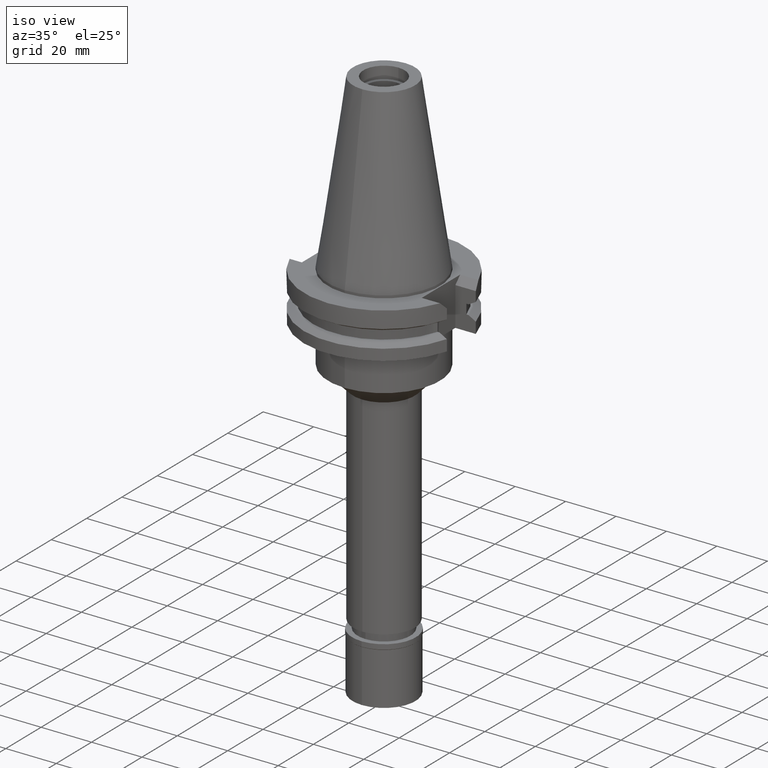
[diagram: clean part render]
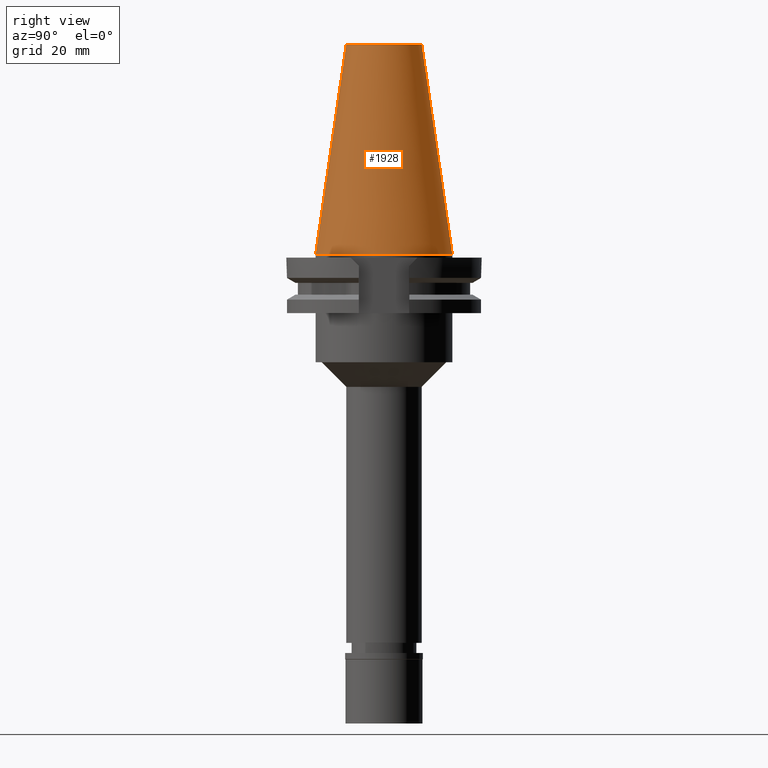
[diagram: tour spotlight — one face highlighted and labeled with its STEP entity id]
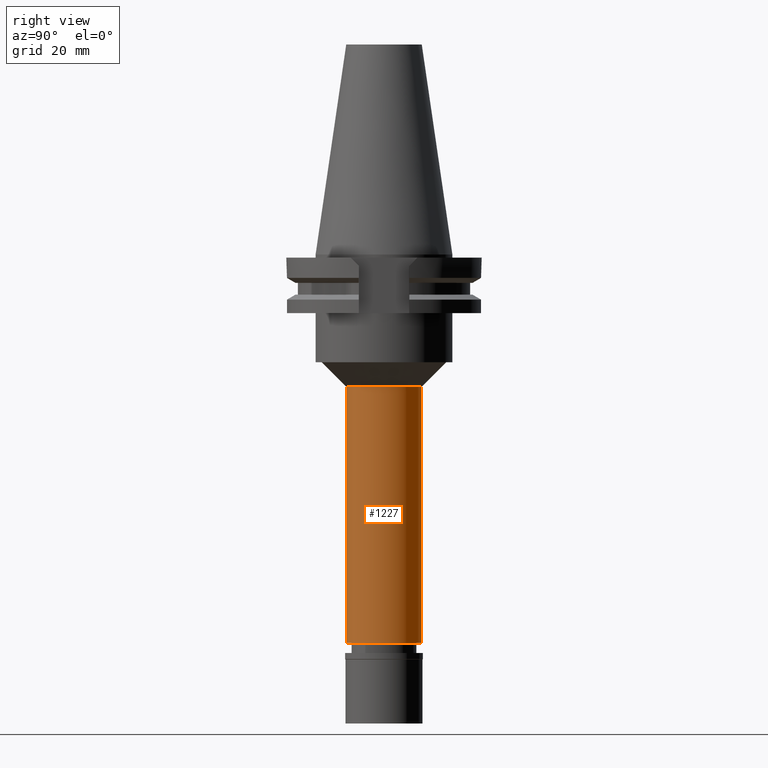
[diagram: tour spotlight — one face highlighted and labeled with its STEP entity id]
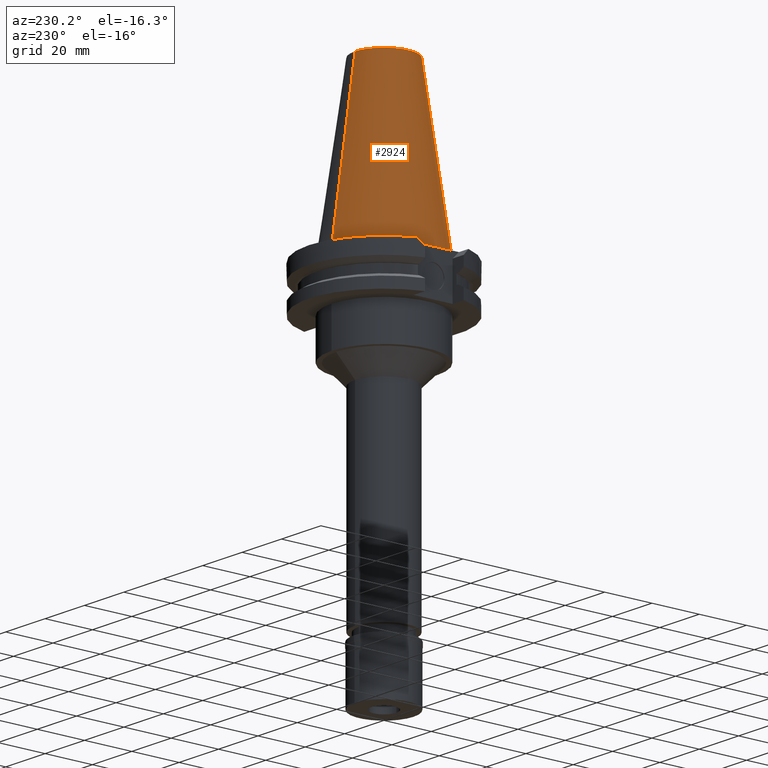
[diagram: tour spotlight — one face highlighted and labeled with its STEP entity id]
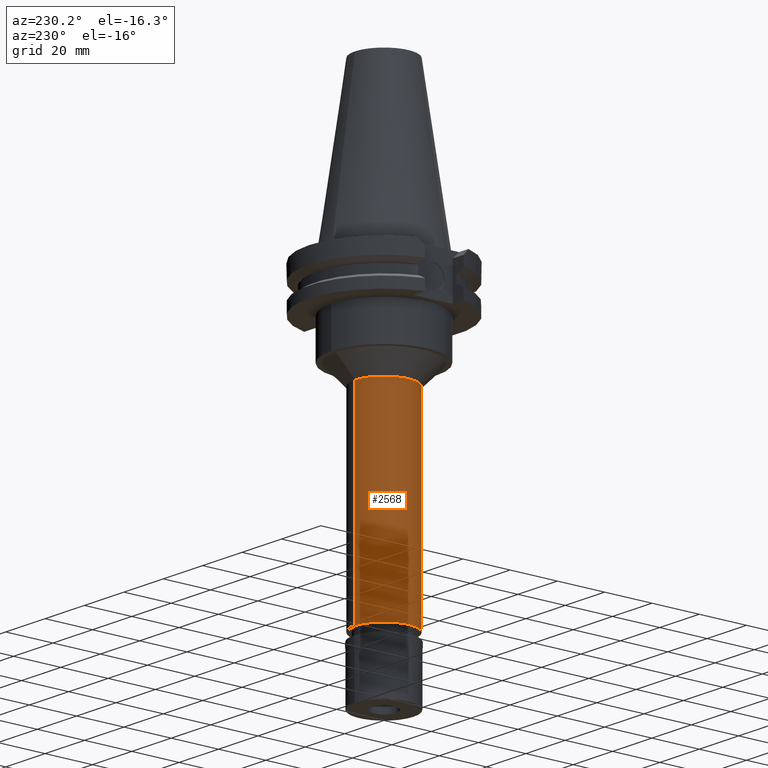
[diagram: tour spotlight — one face highlighted and labeled with its STEP entity id]
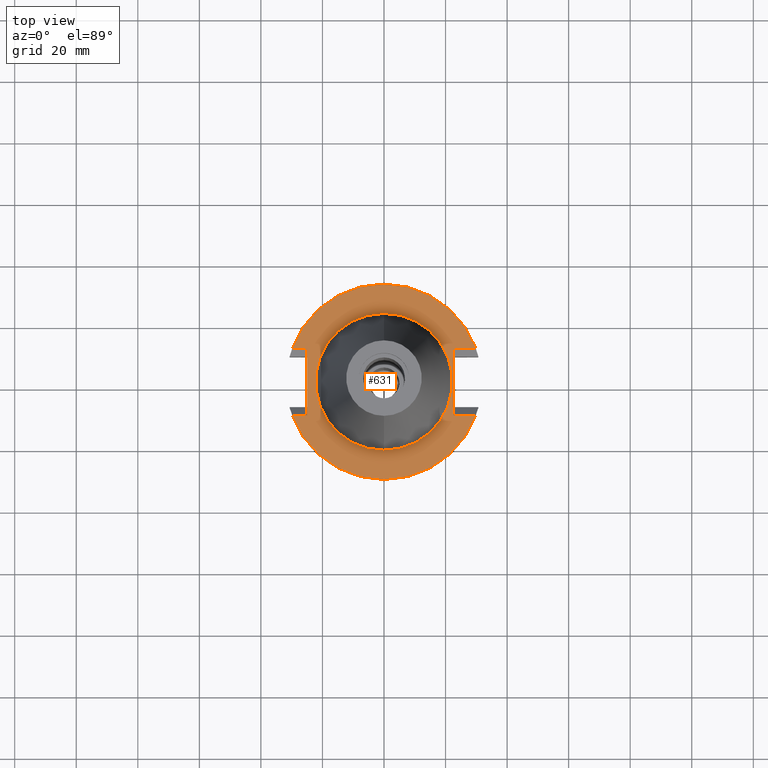
[diagram: tour spotlight — one face highlighted and labeled with its STEP entity id]
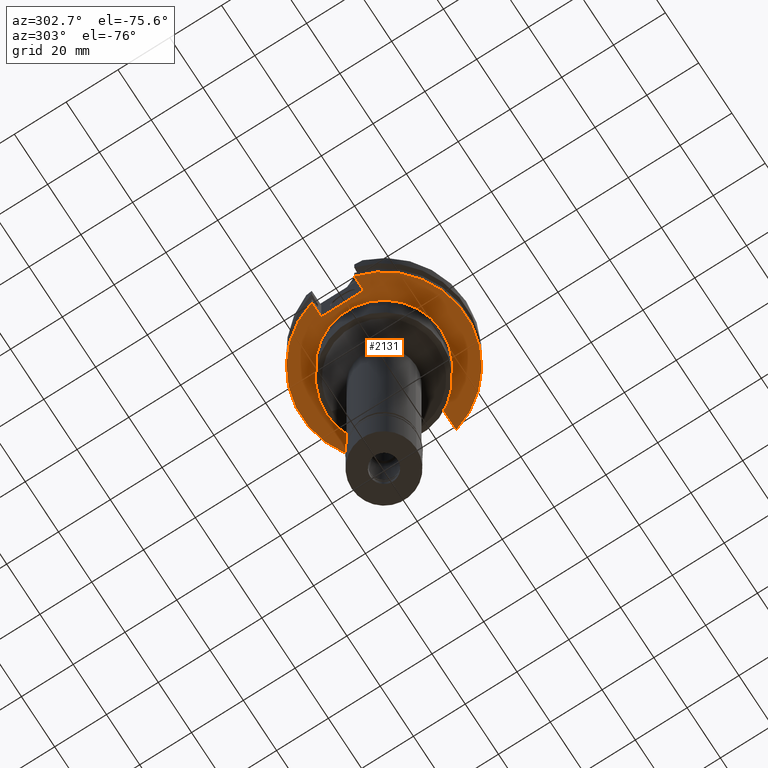
[diagram: tour spotlight — one face highlighted and labeled with its STEP entity id]
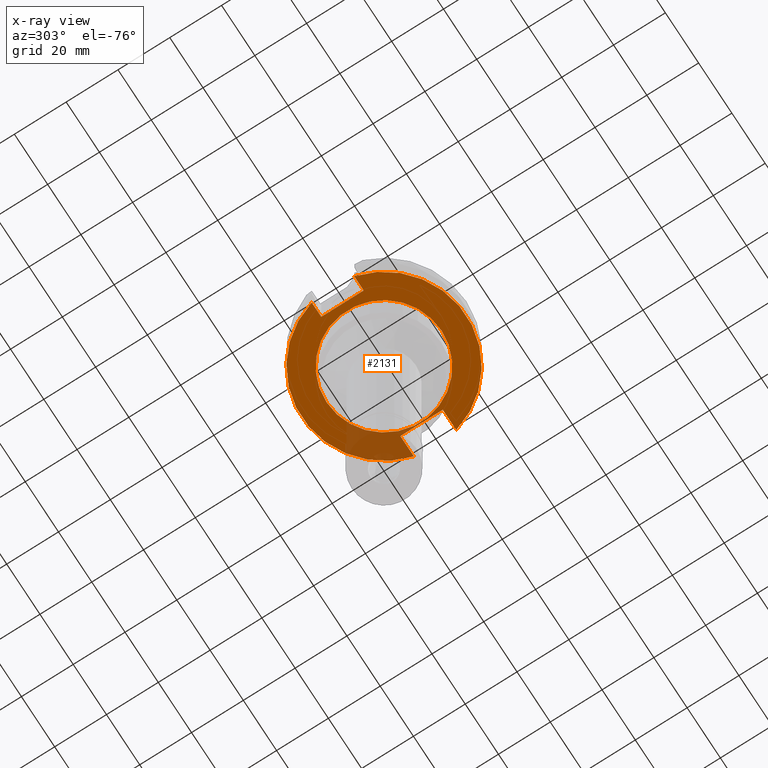
[diagram: x-ray of the same camera — body ghosted, this tour face saturated]
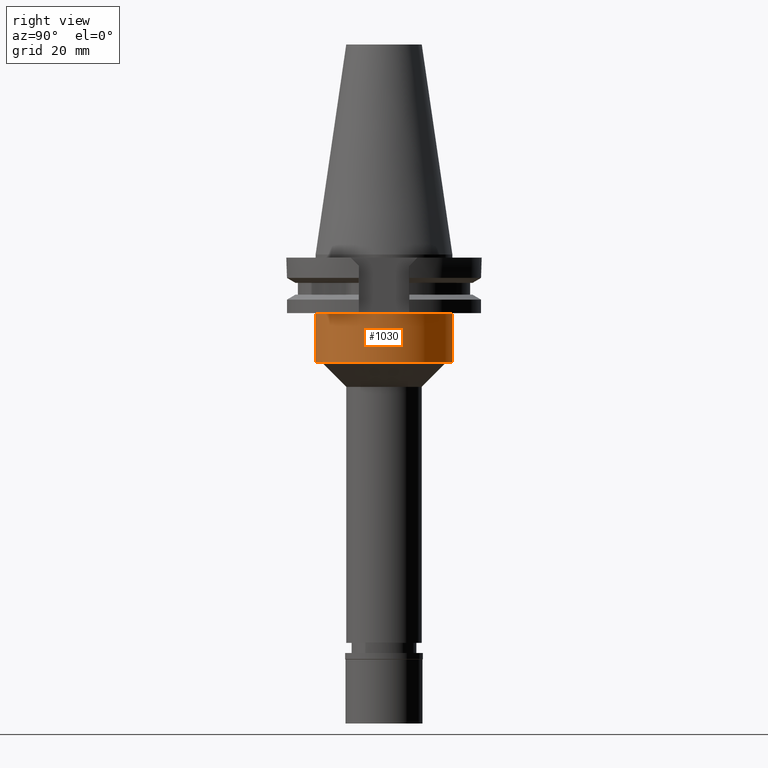
[diagram: tour spotlight — one face highlighted and labeled with its STEP entity id]
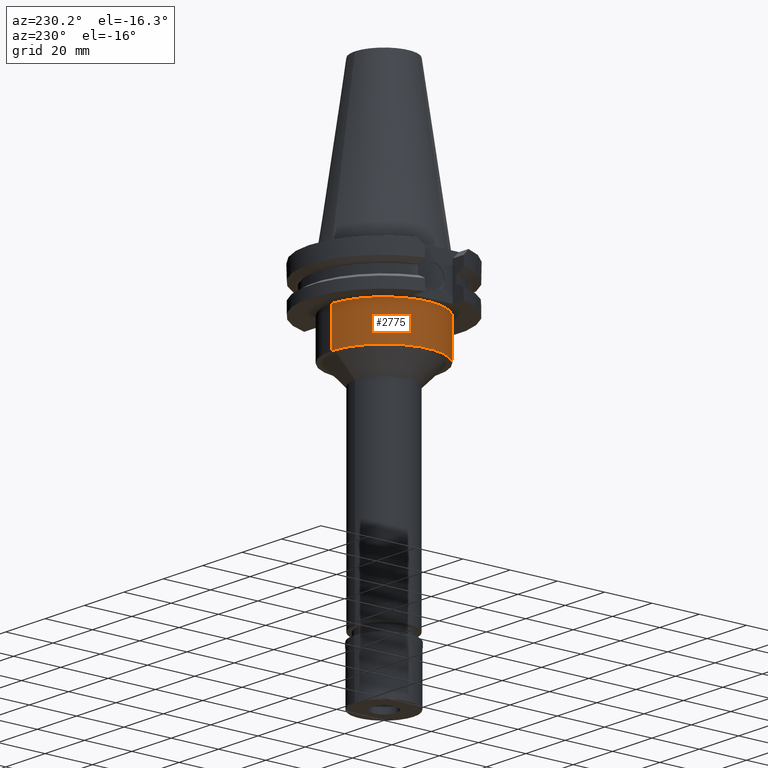
[diagram: tour spotlight — one face highlighted and labeled with its STEP entity id]
A machine part: a face-by-face anatomy tour. The part has 91 B-rep faces; the first image is the clean iso view, then the 8 largest visible faces are spotlighted one at a time (largest first), each with its STEP entity span.

Face 1 — right view, entity #1928. In plain terms, the highlighted conical surface has half-angle 8.297 deg.
Definition (entity closure, byte-faithful):
#20 = EDGE_CURVE ( 'NONE', #3050, #381, #903, .T. ) ;
#129 = CARTESIAN_POINT ( 'NONE',  ( 0.0000000000000000000, -22.22500000000000142, -1.705302565823999875E-13 ) ) ;
#227 = AXIS2_PLACEMENT_3D ( 'NONE', #652, #886, #2462 ) ;
#288 = AXIS2_PLACEMENT_3D ( 'NONE', #3071, #476, #2256 ) ;
#365 = ORIENTED_EDGE ( 'NONE', *, *, #3039, .T. ) ;
#381 = VERTEX_POINT ( 'NONE', #1610 ) ;
#476 = DIRECTION ( 'NONE',  ( 0.0000000000000000000, 0.0000000000000000000, -1.000000000000000000 ) ) ;
#652 = CARTESIAN_POINT ( 'NONE',  ( 0.0000000000000000000, 0.0000000000000000000, 34.12500000000000000 ) ) ;
#663 = LINE ( 'NONE', #2140, #822 ) ;
#822 = VECTOR ( 'NONE', #877, 1000.000000000000114 ) ;
#835 = ORIENTED_EDGE ( 'NONE', *, *, #2961, .T. ) ;
#877 = DIRECTION ( 'NONE',  ( 0.0000000000000000000, -0.1443069799456937474, -0.9895329683941577192 ) ) ;
#886 = DIRECTION ( 'NONE',  ( 0.0000000000000000000, 0.0000000000000000000, -1.000000000000000000 ) ) ;
#903 = LINE ( 'NONE', #1259, #3177 ) ;
#913 = DIRECTION ( 'NONE',  ( 0.0000000000000000000, 0.0000000000000000000, -1.000000000000000000 ) ) ;
#985 = CIRCLE ( 'NONE', #288, 22.22500000000000142 ) ;
#1020 = VERTEX_POINT ( 'NONE', #2979 ) ;
#1259 = CARTESIAN_POINT ( 'NONE',  ( 0.0000000000000000000, 12.27186888070000137, 68.25000000000000000 ) ) ;
#1493 = DIRECTION ( 'NONE',  ( 0.0000000000000000000, 0.1443069799456937474, -0.9895329683941577192 ) ) ;
#1517 = ORIENTED_EDGE ( 'NONE', *, *, #20, .F. ) ;
#1610 = CARTESIAN_POINT ( 'NONE',  ( 0.0000000000000000000, 22.22500000000000142, -1.705302565823999875E-13 ) ) ;
#1679 = CONICAL_SURFACE ( 'NONE', #227, 17.24843444035000317, 0.1448125860318199565 ) ;
#1883 = CARTESIAN_POINT ( 'NONE',  ( 0.0000000000000000000, 12.27186888070000137, 68.25000000000000000 ) ) ;
#1928 = ADVANCED_FACE ( 'NONE', ( #2477 ), #1679, .T. ) ;
#1939 = DIRECTION ( 'NONE',  ( 0.0000000000000000000, 1.000000000000000000, 0.0000000000000000000 ) ) ;
#2140 = CARTESIAN_POINT ( 'NONE',  ( 0.0000000000000000000, -12.27186888070000137, 68.25000000000000000 ) ) ;
#2158 = CARTESIAN_POINT ( 'NONE',  ( 0.0000000000000000000, 0.0000000000000000000, 68.25000000000000000 ) ) ;
#2256 = DIRECTION ( 'NONE',  ( 0.0000000000000000000, 1.000000000000000000, 0.0000000000000000000 ) ) ;
#2462 = DIRECTION ( 'NONE',  ( 0.0000000000000000000, -1.000000000000000000, 0.0000000000000000000 ) ) ;
#2477 = FACE_OUTER_BOUND ( 'NONE', #3003, .T. ) ;
#2561 = VERTEX_POINT ( 'NONE', #129 ) ;
#2627 = EDGE_CURVE ( 'NONE', #381, #2561, #985, .T. ) ;
#2877 = CIRCLE ( 'NONE', #3213, 12.27186888070000137 ) ;
#2961 = EDGE_CURVE ( 'NONE', #3050, #1020, #2877, .T. ) ;
#2969 = ORIENTED_EDGE ( 'NONE', *, *, #2627, .F. ) ;
#2979 = CARTESIAN_POINT ( 'NONE',  ( 0.0000000000000000000, -12.27186888070000137, 68.25000000000000000 ) ) ;
#3003 = EDGE_LOOP ( 'NONE', ( #835, #365, #2969, #1517 ) ) ;
#3039 = EDGE_CURVE ( 'NONE', #1020, #2561, #663, .T. ) ;
#3050 = VERTEX_POINT ( 'NONE', #1883 ) ;
#3071 = CARTESIAN_POINT ( 'NONE',  ( 0.0000000000000000000, 0.0000000000000000000, -3.126388037344000570E-13 ) ) ;
#3177 = VECTOR ( 'NONE', #1493, 1000.000000000000114 ) ;
#3213 = AXIS2_PLACEMENT_3D ( 'NONE', #2158, #913, #1939 ) ;

Face 2 — right view, entity #1227. In plain terms, the highlighted cylindrical surface (partial cylindrical patch) has radius 12.25 mm, axis along (0, 0, -1).
Definition (entity closure, byte-faithful):
#51 = VERTEX_POINT ( 'NONE', #396 ) ;
#326 = CIRCLE ( 'NONE', #755, 12.25000000000000000 ) ;
#396 = CARTESIAN_POINT ( 'NONE',  ( 0.0000000000000000000, 12.25000000000000000, -43.00000000000000000 ) ) ;
#581 = AXIS2_PLACEMENT_3D ( 'NONE', #3171, #1894, #1323 ) ;
#736 = LINE ( 'NONE', #1003, #1622 ) ;
#751 = VERTEX_POINT ( 'NONE', #752 ) ;
#752 = CARTESIAN_POINT ( 'NONE',  ( 0.0000000000000000000, -12.25000000000000000, -126.2000000000000028 ) ) ;
#755 = AXIS2_PLACEMENT_3D ( 'NONE', #1509, #1039, #2592 ) ;
#829 = ORIENTED_EDGE ( 'NONE', *, *, #1901, .F. ) ;
#836 = ORIENTED_EDGE ( 'NONE', *, *, #2869, .T. ) ;
#1003 = CARTESIAN_POINT ( 'NONE',  ( 0.0000000000000000000, -12.25000000000000000, -43.00000000000000000 ) ) ;
#1039 = DIRECTION ( 'NONE',  ( 0.0000000000000000000, 0.0000000000000000000, 1.000000000000000000 ) ) ;
#1048 = EDGE_CURVE ( 'NONE', #751, #1605, #326, .T. ) ;
#1227 = ADVANCED_FACE ( 'NONE', ( #1861 ), #3149, .T. ) ;
#1318 = LINE ( 'NONE', #2097, #2271 ) ;
#1323 = DIRECTION ( 'NONE',  ( 0.0000000000000000000, -1.000000000000000000, 0.0000000000000000000 ) ) ;
#1509 = CARTESIAN_POINT ( 'NONE',  ( 0.0000000000000000000, 0.0000000000000000000, -126.2000000000000028 ) ) ;
#1605 = VERTEX_POINT ( 'NONE', #2534 ) ;
#1622 = VECTOR ( 'NONE', #2572, 1000.000000000000000 ) ;
#1666 = EDGE_CURVE ( 'NONE', #1723, #751, #736, .T. ) ;
#1688 = AXIS2_PLACEMENT_3D ( 'NONE', #1865, #2905, #2091 ) ;
#1723 = VERTEX_POINT ( 'NONE', #1741 ) ;
#1741 = CARTESIAN_POINT ( 'NONE',  ( 0.0000000000000000000, -12.25000000000000000, -43.00000000000000000 ) ) ;
#1861 = FACE_OUTER_BOUND ( 'NONE', #1964, .T. ) ;
#1865 = CARTESIAN_POINT ( 'NONE',  ( 0.0000000000000000000, 0.0000000000000000000, -43.00000000000000000 ) ) ;
#1894 = DIRECTION ( 'NONE',  ( 0.0000000000000000000, 0.0000000000000000000, -1.000000000000000000 ) ) ;
#1901 = EDGE_CURVE ( 'NONE', #51, #1605, #1318, .T. ) ;
#1961 = CIRCLE ( 'NONE', #1688, 12.25000000000000000 ) ;
#1964 = EDGE_LOOP ( 'NONE', ( #836, #2367, #2148, #829 ) ) ;
#2091 = DIRECTION ( 'NONE',  ( 0.0000000000000000000, 1.000000000000000000, 0.0000000000000000000 ) ) ;
#2097 = CARTESIAN_POINT ( 'NONE',  ( 0.0000000000000000000, 12.25000000000000000, -43.00000000000000000 ) ) ;
#2148 = ORIENTED_EDGE ( 'NONE', *, *, #1048, .T. ) ;
#2271 = VECTOR ( 'NONE', #2928, 1000.000000000000000 ) ;
#2367 = ORIENTED_EDGE ( 'NONE', *, *, #1666, .T. ) ;
#2534 = CARTESIAN_POINT ( 'NONE',  ( 0.0000000000000000000, 12.25000000000000000, -126.2000000000000028 ) ) ;
#2572 = DIRECTION ( 'NONE',  ( 0.0000000000000000000, 0.0000000000000000000, -1.000000000000000000 ) ) ;
#2592 = DIRECTION ( 'NONE',  ( 0.0000000000000000000, -1.000000000000000000, 0.0000000000000000000 ) ) ;
#2869 = EDGE_CURVE ( 'NONE', #51, #1723, #1961, .T. ) ;
#2905 = DIRECTION ( 'NONE',  ( 0.0000000000000000000, 0.0000000000000000000, -1.000000000000000000 ) ) ;
#2928 = DIRECTION ( 'NONE',  ( 0.0000000000000000000, 0.0000000000000000000, -1.000000000000000000 ) ) ;
#3149 = CYLINDRICAL_SURFACE ( 'NONE', #581, 12.25000000000000000 ) ;
#3171 = CARTESIAN_POINT ( 'NONE',  ( 0.0000000000000000000, 0.0000000000000000000, 78.83249999999999602 ) ) ;

Face 3 — auxiliary view, entity #2924. In plain terms, the highlighted conical surface has half-angle 8.297 deg.
Definition (entity closure, byte-faithful):
#20 = EDGE_CURVE ( 'NONE', #3050, #381, #903, .T. ) ;
#39 = ORIENTED_EDGE ( 'NONE', *, *, #827, .T. ) ;
#129 = CARTESIAN_POINT ( 'NONE',  ( 0.0000000000000000000, -22.22500000000000142, -1.705302565823999875E-13 ) ) ;
#293 = CONICAL_SURFACE ( 'NONE', #2124, 17.24843444035000317, 0.1448125860318199565 ) ;
#315 = CARTESIAN_POINT ( 'NONE',  ( 0.0000000000000000000, 0.0000000000000000000, 68.25000000000000000 ) ) ;
#381 = VERTEX_POINT ( 'NONE', #1610 ) ;
#382 = DIRECTION ( 'NONE',  ( 0.0000000000000000000, -1.000000000000000000, 0.0000000000000000000 ) ) ;
#663 = LINE ( 'NONE', #2140, #822 ) ;
#775 = DIRECTION ( 'NONE',  ( 0.0000000000000000000, 0.0000000000000000000, -1.000000000000000000 ) ) ;
#822 = VECTOR ( 'NONE', #877, 1000.000000000000114 ) ;
#827 = EDGE_CURVE ( 'NONE', #1020, #3050, #3246, .T. ) ;
#877 = DIRECTION ( 'NONE',  ( 0.0000000000000000000, -0.1443069799456937474, -0.9895329683941577192 ) ) ;
#903 = LINE ( 'NONE', #1259, #3177 ) ;
#924 = CARTESIAN_POINT ( 'NONE',  ( 0.0000000000000000000, 0.0000000000000000000, -3.126388037344000570E-13 ) ) ;
#1000 = EDGE_CURVE ( 'NONE', #2561, #381, #2585, .T. ) ;
#1020 = VERTEX_POINT ( 'NONE', #2979 ) ;
#1259 = CARTESIAN_POINT ( 'NONE',  ( 0.0000000000000000000, 12.27186888070000137, 68.25000000000000000 ) ) ;
#1313 = CARTESIAN_POINT ( 'NONE',  ( 0.0000000000000000000, 0.0000000000000000000, 34.12500000000000000 ) ) ;
#1316 = ORIENTED_EDGE ( 'NONE', *, *, #20, .T. ) ;
#1405 = DIRECTION ( 'NONE',  ( 0.0000000000000000000, 0.0000000000000000000, -1.000000000000000000 ) ) ;
#1421 = DIRECTION ( 'NONE',  ( 0.0000000000000000000, -1.000000000000000000, 0.0000000000000000000 ) ) ;
#1493 = DIRECTION ( 'NONE',  ( 0.0000000000000000000, 0.1443069799456937474, -0.9895329683941577192 ) ) ;
#1559 = FACE_OUTER_BOUND ( 'NONE', #2014, .T. ) ;
#1610 = CARTESIAN_POINT ( 'NONE',  ( 0.0000000000000000000, 22.22500000000000142, -1.705302565823999875E-13 ) ) ;
#1883 = CARTESIAN_POINT ( 'NONE',  ( 0.0000000000000000000, 12.27186888070000137, 68.25000000000000000 ) ) ;
#1949 = DIRECTION ( 'NONE',  ( 0.0000000000000000000, 0.0000000000000000000, -1.000000000000000000 ) ) ;
#2014 = EDGE_LOOP ( 'NONE', ( #2518, #2397, #39, #1316 ) ) ;
#2098 = AXIS2_PLACEMENT_3D ( 'NONE', #315, #1405, #382 ) ;
#2124 = AXIS2_PLACEMENT_3D ( 'NONE', #1313, #775, #2865 ) ;
#2140 = CARTESIAN_POINT ( 'NONE',  ( 0.0000000000000000000, -12.27186888070000137, 68.25000000000000000 ) ) ;
#2365 = AXIS2_PLACEMENT_3D ( 'NONE', #924, #1949, #1421 ) ;
#2397 = ORIENTED_EDGE ( 'NONE', *, *, #3039, .F. ) ;
#2518 = ORIENTED_EDGE ( 'NONE', *, *, #1000, .F. ) ;
#2561 = VERTEX_POINT ( 'NONE', #129 ) ;
#2585 = CIRCLE ( 'NONE', #2365, 22.22500000000000142 ) ;
#2865 = DIRECTION ( 'NONE',  ( 0.0000000000000000000, -1.000000000000000000, 0.0000000000000000000 ) ) ;
#2924 = ADVANCED_FACE ( 'NONE', ( #1559 ), #293, .T. ) ;
#2979 = CARTESIAN_POINT ( 'NONE',  ( 0.0000000000000000000, -12.27186888070000137, 68.25000000000000000 ) ) ;
#3039 = EDGE_CURVE ( 'NONE', #1020, #2561, #663, .T. ) ;
#3050 = VERTEX_POINT ( 'NONE', #1883 ) ;
#3177 = VECTOR ( 'NONE', #1493, 1000.000000000000114 ) ;
#3246 = CIRCLE ( 'NONE', #2098, 12.27186888070000137 ) ;

Face 4 — auxiliary view, entity #2568. In plain terms, the highlighted cylindrical surface (partial cylindrical patch) has radius 12.25 mm, axis along (0, 0, -1).
Definition (entity closure, byte-faithful):
#51 = VERTEX_POINT ( 'NONE', #396 ) ;
#84 = AXIS2_PLACEMENT_3D ( 'NONE', #1195, #1667, #2703 ) ;
#186 = DIRECTION ( 'NONE',  ( 0.0000000000000000000, -1.000000000000000000, 0.0000000000000000000 ) ) ;
#396 = CARTESIAN_POINT ( 'NONE',  ( 0.0000000000000000000, 12.25000000000000000, -43.00000000000000000 ) ) ;
#472 = CARTESIAN_POINT ( 'NONE',  ( 0.0000000000000000000, 0.0000000000000000000, -43.00000000000000000 ) ) ;
#545 = EDGE_CURVE ( 'NONE', #1723, #51, #1443, .T. ) ;
#736 = LINE ( 'NONE', #1003, #1622 ) ;
#751 = VERTEX_POINT ( 'NONE', #752 ) ;
#752 = CARTESIAN_POINT ( 'NONE',  ( 0.0000000000000000000, -12.25000000000000000, -126.2000000000000028 ) ) ;
#1002 = ORIENTED_EDGE ( 'NONE', *, *, #1901, .T. ) ;
#1003 = CARTESIAN_POINT ( 'NONE',  ( 0.0000000000000000000, -12.25000000000000000, -43.00000000000000000 ) ) ;
#1154 = EDGE_LOOP ( 'NONE', ( #1266, #1858, #1553, #1002 ) ) ;
#1195 = CARTESIAN_POINT ( 'NONE',  ( 0.0000000000000000000, 0.0000000000000000000, 78.83249999999999602 ) ) ;
#1266 = ORIENTED_EDGE ( 'NONE', *, *, #1794, .T. ) ;
#1318 = LINE ( 'NONE', #2097, #2271 ) ;
#1395 = AXIS2_PLACEMENT_3D ( 'NONE', #472, #3297, #186 ) ;
#1443 = CIRCLE ( 'NONE', #1395, 12.25000000000000000 ) ;
#1553 = ORIENTED_EDGE ( 'NONE', *, *, #545, .T. ) ;
#1566 = CARTESIAN_POINT ( 'NONE',  ( 0.0000000000000000000, 0.0000000000000000000, -126.2000000000000028 ) ) ;
#1586 = DIRECTION ( 'NONE',  ( 0.0000000000000000000, 1.000000000000000000, 0.0000000000000000000 ) ) ;
#1605 = VERTEX_POINT ( 'NONE', #2534 ) ;
#1622 = VECTOR ( 'NONE', #2572, 1000.000000000000000 ) ;
#1666 = EDGE_CURVE ( 'NONE', #1723, #751, #736, .T. ) ;
#1667 = DIRECTION ( 'NONE',  ( 0.0000000000000000000, 0.0000000000000000000, -1.000000000000000000 ) ) ;
#1723 = VERTEX_POINT ( 'NONE', #1741 ) ;
#1741 = CARTESIAN_POINT ( 'NONE',  ( 0.0000000000000000000, -12.25000000000000000, -43.00000000000000000 ) ) ;
#1794 = EDGE_CURVE ( 'NONE', #1605, #751, #2482, .T. ) ;
#1858 = ORIENTED_EDGE ( 'NONE', *, *, #1666, .F. ) ;
#1901 = EDGE_CURVE ( 'NONE', #51, #1605, #1318, .T. ) ;
#1924 = FACE_OUTER_BOUND ( 'NONE', #1154, .T. ) ;
#2097 = CARTESIAN_POINT ( 'NONE',  ( 0.0000000000000000000, 12.25000000000000000, -43.00000000000000000 ) ) ;
#2271 = VECTOR ( 'NONE', #2928, 1000.000000000000000 ) ;
#2323 = AXIS2_PLACEMENT_3D ( 'NONE', #1566, #2344, #1586 ) ;
#2344 = DIRECTION ( 'NONE',  ( 0.0000000000000000000, 0.0000000000000000000, 1.000000000000000000 ) ) ;
#2444 = CYLINDRICAL_SURFACE ( 'NONE', #84, 12.25000000000000000 ) ;
#2482 = CIRCLE ( 'NONE', #2323, 12.25000000000000000 ) ;
#2534 = CARTESIAN_POINT ( 'NONE',  ( 0.0000000000000000000, 12.25000000000000000, -126.2000000000000028 ) ) ;
#2568 = ADVANCED_FACE ( 'NONE', ( #1924 ), #2444, .T. ) ;
#2572 = DIRECTION ( 'NONE',  ( 0.0000000000000000000, 0.0000000000000000000, -1.000000000000000000 ) ) ;
#2703 = DIRECTION ( 'NONE',  ( 0.0000000000000000000, -1.000000000000000000, 0.0000000000000000000 ) ) ;
#2928 = DIRECTION ( 'NONE',  ( 0.0000000000000000000, 0.0000000000000000000, -1.000000000000000000 ) ) ;
#3297 = DIRECTION ( 'NONE',  ( 0.0000000000000000000, 0.0000000000000000000, -1.000000000000000000 ) ) ;

Face 5 — top view, entity #631. In plain terms, the highlighted planar face has unit normal (0, 0, -1).
Definition (entity closure, byte-faithful):
#9 = ORIENTED_EDGE ( 'NONE', *, *, #480, .F. ) ;
#14 = VECTOR ( 'NONE', #367, 1000.000000000000000 ) ;
#52 = LINE ( 'NONE', #1117, #3200 ) ;
#61 = AXIS2_PLACEMENT_3D ( 'NONE', #1425, #2934, #626 ) ;
#189 = CARTESIAN_POINT ( 'NONE',  ( 22.57000000000000028, 10.89000000000000057, -1.000000000000000000 ) ) ;
#205 = VERTEX_POINT ( 'NONE', #2104 ) ;
#250 = CARTESIAN_POINT ( 'NONE',  ( 0.0000000000000000000, 22.22500000000000142, -1.000000000000000000 ) ) ;
#255 = DIRECTION ( 'NONE',  ( 0.0000000000000000000, 1.000000000000000000, 0.0000000000000000000 ) ) ;
#272 = EDGE_CURVE ( 'NONE', #3192, #1249, #2629, .T. ) ;
#274 = DIRECTION ( 'NONE',  ( 0.0000000000000000000, -1.000000000000000000, 0.0000000000000000000 ) ) ;
#276 = VERTEX_POINT ( 'NONE', #250 ) ;
#367 = DIRECTION ( 'NONE',  ( 1.000000000000000000, 5.828142963617000473E-14, 0.0000000000000000000 ) ) ;
#378 = EDGE_CURVE ( 'NONE', #3046, #1249, #2906, .T. ) ;
#423 = DIRECTION ( 'NONE',  ( 0.0000000000000000000, -1.000000000000000000, 0.0000000000000000000 ) ) ;
#431 = AXIS2_PLACEMENT_3D ( 'NONE', #1125, #2138, #1394 ) ;
#466 = ORIENTED_EDGE ( 'NONE', *, *, #1718, .F. ) ;
#480 = EDGE_CURVE ( 'NONE', #957, #205, #1821, .T. ) ;
#603 = CARTESIAN_POINT ( 'NONE',  ( 29.82399034335000110, -10.89000000000000057, -1.000000000001000089 ) ) ;
#613 = EDGE_CURVE ( 'NONE', #3192, #2096, #3032, .T. ) ;
#622 = CARTESIAN_POINT ( 'NONE',  ( 29.82399034335000110, 10.89000000000000057, -1.000000000001000089 ) ) ;
#626 = DIRECTION ( 'NONE',  ( 0.0000000000000000000, -1.000000000000000000, 0.0000000000000000000 ) ) ;
#631 = ADVANCED_FACE ( 'NONE', ( #1506, #1952 ), #2985, .F. ) ;
#646 = VECTOR ( 'NONE', #1542, 1000.000000000000000 ) ;
#676 = DIRECTION ( 'NONE',  ( 0.0000000000000000000, 0.0000000000000000000, -1.000000000000000000 ) ) ;
#693 = CARTESIAN_POINT ( 'NONE',  ( 0.0000000000000000000, -22.22500000000000142, -1.000000000000000000 ) ) ;
#698 = AXIS2_PLACEMENT_3D ( 'NONE', #1206, #676, #423 ) ;
#738 = ORIENTED_EDGE ( 'NONE', *, *, #955, .F. ) ;
#747 = CARTESIAN_POINT ( 'NONE',  ( -24.98000000000000043, 10.89000000000000057, -1.000000000000000000 ) ) ;
#846 = EDGE_CURVE ( 'NONE', #2096, #957, #1085, .T. ) ;
#866 = EDGE_LOOP ( 'NONE', ( #1063, #466 ) ) ;
#868 = CARTESIAN_POINT ( 'NONE',  ( 22.57000000000000028, -10.89000000000000057, -1.000000000000000000 ) ) ;
#955 = EDGE_CURVE ( 'NONE', #2228, #3046, #2950, .T. ) ;
#957 = VERTEX_POINT ( 'NONE', #603 ) ;
#979 = CIRCLE ( 'NONE', #1954, 22.22500000000000142 ) ;
#1016 = DIRECTION ( 'NONE',  ( 0.0000000000000000000, 0.0000000000000000000, 1.000000000000000000 ) ) ;
#1063 = ORIENTED_EDGE ( 'NONE', *, *, #2107, .F. ) ;
#1085 = LINE ( 'NONE', #868, #14 ) ;
#1117 = CARTESIAN_POINT ( 'NONE',  ( -24.98000000000000043, -10.89000000000000057, -1.000000000000000000 ) ) ;
#1119 = ORIENTED_EDGE ( 'NONE', *, *, #846, .F. ) ;
#1125 = CARTESIAN_POINT ( 'NONE',  ( 0.0000000000000000000, 0.0000000000000000000, -1.000000000000000000 ) ) ;
#1152 = CARTESIAN_POINT ( 'NONE',  ( -24.98000000000000043, -10.89000000000000057, -1.000000000000000000 ) ) ;
#1206 = CARTESIAN_POINT ( 'NONE',  ( 0.0000000000000000000, 0.0000000000000000000, -1.000000000000000000 ) ) ;
#1249 = VERTEX_POINT ( 'NONE', #622 ) ;
#1351 = DIRECTION ( 'NONE',  ( -1.000000000000000000, -8.727782216946000332E-14, 0.0000000000000000000 ) ) ;
#1394 = DIRECTION ( 'NONE',  ( 0.0000000000000000000, 1.000000000000000000, 0.0000000000000000000 ) ) ;
#1425 = CARTESIAN_POINT ( 'NONE',  ( 0.0000000000000000000, 0.0000000000000000000, -1.000000000000000000 ) ) ;
#1506 = FACE_OUTER_BOUND ( 'NONE', #2978, .T. ) ;
#1510 = ORIENTED_EDGE ( 'NONE', *, *, #2657, .T. ) ;
#1522 = VECTOR ( 'NONE', #2785, 1000.000000000000000 ) ;
#1531 = LINE ( 'NONE', #2042, #1522 ) ;
#1542 = DIRECTION ( 'NONE',  ( 1.000000000000000000, -5.754678976681000475E-14, 0.0000000000000000000 ) ) ;
#1552 = VECTOR ( 'NONE', #1351, 1000.000000000000000 ) ;
#1575 = CARTESIAN_POINT ( 'NONE',  ( 22.57000000000000028, 10.89000000000000057, -1.000000000000000000 ) ) ;
#1628 = CARTESIAN_POINT ( 'NONE',  ( -29.82399034335000110, 10.89000000000000057, -1.000000000000000000 ) ) ;
#1718 = EDGE_CURVE ( 'NONE', #3151, #276, #979, .T. ) ;
#1726 = DIRECTION ( 'NONE',  ( 0.0000000000000000000, -1.000000000000000000, 0.0000000000000000000 ) ) ;
#1821 = CIRCLE ( 'NONE', #61, 31.75000000000000000 ) ;
#1836 = EDGE_CURVE ( 'NONE', #1935, #205, #52, .T. ) ;
#1935 = VERTEX_POINT ( 'NONE', #1152 ) ;
#1952 = FACE_BOUND ( 'NONE', #866, .T. ) ;
#1954 = AXIS2_PLACEMENT_3D ( 'NONE', #2588, #2050, #274 ) ;
#2042 = CARTESIAN_POINT ( 'NONE',  ( -24.98000000000000043, 10.89000000000000057, -1.000000000000000000 ) ) ;
#2050 = DIRECTION ( 'NONE',  ( 0.0000000000000000000, 0.0000000000000000000, 1.000000000000000000 ) ) ;
#2060 = CIRCLE ( 'NONE', #3263, 22.22500000000000142 ) ;
#2096 = VERTEX_POINT ( 'NONE', #3027 ) ;
#2104 = CARTESIAN_POINT ( 'NONE',  ( -29.82399034335000110, -10.89000000000000057, -1.000000000001000089 ) ) ;
#2107 = EDGE_CURVE ( 'NONE', #276, #3151, #2060, .T. ) ;
#2138 = DIRECTION ( 'NONE',  ( 0.0000000000000000000, 0.0000000000000000000, -1.000000000000000000 ) ) ;
#2165 = CARTESIAN_POINT ( 'NONE',  ( -24.98000000000000043, 10.89000000000000057, -1.000000000000000000 ) ) ;
#2228 = VERTEX_POINT ( 'NONE', #747 ) ;
#2284 = ORIENTED_EDGE ( 'NONE', *, *, #613, .F. ) ;
#2299 = ORIENTED_EDGE ( 'NONE', *, *, #1836, .T. ) ;
#2342 = ORIENTED_EDGE ( 'NONE', *, *, #378, .F. ) ;
#2418 = ORIENTED_EDGE ( 'NONE', *, *, #272, .T. ) ;
#2526 = VECTOR ( 'NONE', #1726, 1000.000000000000000 ) ;
#2588 = CARTESIAN_POINT ( 'NONE',  ( 0.0000000000000000000, 0.0000000000000000000, -1.000000000000000000 ) ) ;
#2629 = LINE ( 'NONE', #1575, #646 ) ;
#2653 = DIRECTION ( 'NONE',  ( -1.000000000000000000, 8.617768155387999131E-14, 0.0000000000000000000 ) ) ;
#2657 = EDGE_CURVE ( 'NONE', #2228, #1935, #1531, .T. ) ;
#2779 = CARTESIAN_POINT ( 'NONE',  ( 22.57000000000000028, 10.89000000000000057, -1.000000000000000000 ) ) ;
#2785 = DIRECTION ( 'NONE',  ( 0.0000000000000000000, -1.000000000000000000, 0.0000000000000000000 ) ) ;
#2906 = CIRCLE ( 'NONE', #431, 31.75000000000000000 ) ;
#2934 = DIRECTION ( 'NONE',  ( 0.0000000000000000000, 0.0000000000000000000, -1.000000000000000000 ) ) ;
#2950 = LINE ( 'NONE', #2165, #1552 ) ;
#2978 = EDGE_LOOP ( 'NONE', ( #2418, #2342, #738, #1510, #2299, #9, #1119, #2284 ) ) ;
#2985 = PLANE ( 'NONE',  #698 ) ;
#3027 = CARTESIAN_POINT ( 'NONE',  ( 22.57000000000000028, -10.89000000000000057, -1.000000000000000000 ) ) ;
#3032 = LINE ( 'NONE', #2779, #2526 ) ;
#3041 = CARTESIAN_POINT ( 'NONE',  ( 0.0000000000000000000, 0.0000000000000000000, -1.000000000000000000 ) ) ;
#3046 = VERTEX_POINT ( 'NONE', #1628 ) ;
#3151 = VERTEX_POINT ( 'NONE', #693 ) ;
#3192 = VERTEX_POINT ( 'NONE', #189 ) ;
#3200 = VECTOR ( 'NONE', #2653, 1000.000000000000000 ) ;
#3263 = AXIS2_PLACEMENT_3D ( 'NONE', #3041, #1016, #255 ) ;

Face 6 — auxiliary view, entity #2131. An x-ray twin of the same camera follows (body ghosted, this face saturated) — the face is partly hidden behind the body. In plain terms, the highlighted planar face has unit normal (0, 0, -1).
Definition (entity closure, byte-faithful):
#22 = CARTESIAN_POINT ( 'NONE',  ( 22.57000000000000028, -8.189999999999999503, -19.05000000000000071 ) ) ;
#85 = DIRECTION ( 'NONE',  ( 0.0000000000000000000, 0.0000000000000000000, 1.000000000000000000 ) ) ;
#145 = DIRECTION ( 'NONE',  ( -1.000000000000000000, 0.0000000000000000000, 0.0000000000000000000 ) ) ;
#190 = VECTOR ( 'NONE', #145, 1000.000000000000000 ) ;
#248 = DIRECTION ( 'NONE',  ( 0.0000000000000000000, 0.0000000000000000000, -1.000000000000000000 ) ) ;
#259 = VERTEX_POINT ( 'NONE', #2593 ) ;
#270 = CARTESIAN_POINT ( 'NONE',  ( 22.57000000000000028, 8.189999999999999503, -19.05000000000000071 ) ) ;
#279 = CARTESIAN_POINT ( 'NONE',  ( -24.98000000000000043, -8.189999999999999503, -19.05000000000000071 ) ) ;
#391 = LINE ( 'NONE', #2440, #190 ) ;
#434 = VECTOR ( 'NONE', #2810, 1000.000000000000000 ) ;
#444 = CIRCLE ( 'NONE', #1893, 31.75000000000000000 ) ;
#474 = CARTESIAN_POINT ( 'NONE',  ( 22.57000000000000028, 8.189999999999999503, -19.05000000000000071 ) ) ;
#507 = CARTESIAN_POINT ( 'NONE',  ( -24.98000000000000043, -8.189999999999999503, -19.05000000000000071 ) ) ;
#510 = DIRECTION ( 'NONE',  ( 0.0000000000000000000, 0.0000000000000000000, -1.000000000000000000 ) ) ;
#526 = CARTESIAN_POINT ( 'NONE',  ( 0.0000000000000000000, 0.0000000000000000000, -19.05000000000000071 ) ) ;
#582 = DIRECTION ( 'NONE',  ( 0.0000000000000000000, -1.000000000000000000, 0.0000000000000000000 ) ) ;
#668 = ORIENTED_EDGE ( 'NONE', *, *, #1217, .F. ) ;
#672 = EDGE_LOOP ( 'NONE', ( #2132, #748, #871, #2422, #1837, #953, #2858, #3091 ) ) ;
#748 = ORIENTED_EDGE ( 'NONE', *, *, #1776, .F. ) ;
#770 = EDGE_CURVE ( 'NONE', #1216, #259, #811, .T. ) ;
#804 = CIRCLE ( 'NONE', #3228, 22.22500000000000142 ) ;
#811 = LINE ( 'NONE', #279, #434 ) ;
#871 = ORIENTED_EDGE ( 'NONE', *, *, #770, .F. ) ;
#884 = VERTEX_POINT ( 'NONE', #3188 ) ;
#902 = CARTESIAN_POINT ( 'NONE',  ( -24.98000000000000043, 8.189999999999999503, -19.05000000000000071 ) ) ;
#910 = EDGE_LOOP ( 'NONE', ( #3152, #668 ) ) ;
#929 = DIRECTION ( 'NONE',  ( 0.0000000000000000000, -1.000000000000000000, 0.0000000000000000000 ) ) ;
#953 = ORIENTED_EDGE ( 'NONE', *, *, #3055, .F. ) ;
#996 = CARTESIAN_POINT ( 'NONE',  ( 30.67550162588999640, 8.189999999999999503, -19.05000000000000071 ) ) ;
#1098 = AXIS2_PLACEMENT_3D ( 'NONE', #2988, #2938, #3179 ) ;
#1216 = VERTEX_POINT ( 'NONE', #507 ) ;
#1217 = EDGE_CURVE ( 'NONE', #1436, #2115, #804, .T. ) ;
#1264 = DIRECTION ( 'NONE',  ( 0.0000000000000000000, 0.0000000000000000000, -1.000000000000000000 ) ) ;
#1274 = DIRECTION ( 'NONE',  ( 0.0000000000000000000, -1.000000000000000000, 0.0000000000000000000 ) ) ;
#1330 = LINE ( 'NONE', #270, #2176 ) ;
#1413 = LINE ( 'NONE', #1664, #2935 ) ;
#1415 = CARTESIAN_POINT ( 'NONE',  ( -30.67550162588999640, 8.189999999999999503, -19.05000000000000071 ) ) ;
#1436 = VERTEX_POINT ( 'NONE', #1659 ) ;
#1495 = LINE ( 'NONE', #3053, #2171 ) ;
#1534 = DIRECTION ( 'NONE',  ( 0.0000000000000000000, -1.000000000000000000, 0.0000000000000000000 ) ) ;
#1617 = VERTEX_POINT ( 'NONE', #22 ) ;
#1633 = VECTOR ( 'NONE', #3300, 1000.000000000000000 ) ;
#1659 = CARTESIAN_POINT ( 'NONE',  ( 0.0000000000000000000, -22.22500000000000142, -19.05000000000000071 ) ) ;
#1664 = CARTESIAN_POINT ( 'NONE',  ( -24.98000000000000043, 8.189999999999999503, -19.05000000000000071 ) ) ;
#1735 = CARTESIAN_POINT ( 'NONE',  ( 0.0000000000000000000, 22.22500000000000142, -19.05000000000000071 ) ) ;
#1750 = CARTESIAN_POINT ( 'NONE',  ( 0.0000000000000000000, 0.0000000000000000000, -19.05000000000000071 ) ) ;
#1751 = PLANE ( 'NONE',  #1784 ) ;
#1766 = DIRECTION ( 'NONE',  ( 1.000000000000000000, 0.0000000000000000000, 0.0000000000000000000 ) ) ;
#1776 = EDGE_CURVE ( 'NONE', #259, #884, #444, .T. ) ;
#1784 = AXIS2_PLACEMENT_3D ( 'NONE', #526, #1264, #1534 ) ;
#1825 = CARTESIAN_POINT ( 'NONE',  ( 0.0000000000000000000, 0.0000000000000000000, -19.05000000000000071 ) ) ;
#1837 = ORIENTED_EDGE ( 'NONE', *, *, #3121, .T. ) ;
#1893 = AXIS2_PLACEMENT_3D ( 'NONE', #1825, #85, #582 ) ;
#1984 = LINE ( 'NONE', #2253, #1633 ) ;
#2013 = CIRCLE ( 'NONE', #2719, 22.22500000000000142 ) ;
#2026 = DIRECTION ( 'NONE',  ( 0.0000000000000000000, 1.000000000000000000, 0.0000000000000000000 ) ) ;
#2115 = VERTEX_POINT ( 'NONE', #1735 ) ;
#2131 = ADVANCED_FACE ( 'NONE', ( #2513, #2493 ), #1751, .T. ) ;
#2132 = ORIENTED_EDGE ( 'NONE', *, *, #3301, .T. ) ;
#2171 = VECTOR ( 'NONE', #1766, 1000.000000000000000 ) ;
#2176 = VECTOR ( 'NONE', #2834, 1000.000000000000000 ) ;
#2253 = CARTESIAN_POINT ( 'NONE',  ( 22.57000000000000028, -8.189999999999999503, -19.05000000000000071 ) ) ;
#2422 = ORIENTED_EDGE ( 'NONE', *, *, #2982, .F. ) ;
#2440 = CARTESIAN_POINT ( 'NONE',  ( -24.98000000000000043, 8.189999999999999503, -19.05000000000000071 ) ) ;
#2493 = FACE_BOUND ( 'NONE', #910, .T. ) ;
#2513 = FACE_OUTER_BOUND ( 'NONE', #672, .T. ) ;
#2556 = VERTEX_POINT ( 'NONE', #902 ) ;
#2557 = VERTEX_POINT ( 'NONE', #1415 ) ;
#2562 = CARTESIAN_POINT ( 'NONE',  ( 0.0000000000000000000, 0.0000000000000000000, -19.05000000000000071 ) ) ;
#2593 = CARTESIAN_POINT ( 'NONE',  ( -30.67550162588999640, -8.189999999999999503, -19.05000000000000071 ) ) ;
#2628 = EDGE_CURVE ( 'NONE', #3186, #2635, #1495, .T. ) ;
#2635 = VERTEX_POINT ( 'NONE', #996 ) ;
#2642 = EDGE_CURVE ( 'NONE', #2115, #1436, #2013, .T. ) ;
#2719 = AXIS2_PLACEMENT_3D ( 'NONE', #1750, #510, #2026 ) ;
#2810 = DIRECTION ( 'NONE',  ( -1.000000000000000000, 0.0000000000000000000, 0.0000000000000000000 ) ) ;
#2834 = DIRECTION ( 'NONE',  ( 0.0000000000000000000, -1.000000000000000000, 0.0000000000000000000 ) ) ;
#2856 = EDGE_CURVE ( 'NONE', #3186, #1617, #1330, .T. ) ;
#2858 = ORIENTED_EDGE ( 'NONE', *, *, #2628, .F. ) ;
#2935 = VECTOR ( 'NONE', #929, 1000.000000000000000 ) ;
#2938 = DIRECTION ( 'NONE',  ( 0.0000000000000000000, 0.0000000000000000000, 1.000000000000000000 ) ) ;
#2982 = EDGE_CURVE ( 'NONE', #2556, #1216, #1413, .T. ) ;
#2988 = CARTESIAN_POINT ( 'NONE',  ( 0.0000000000000000000, 0.0000000000000000000, -19.05000000000000071 ) ) ;
#3053 = CARTESIAN_POINT ( 'NONE',  ( 22.57000000000000028, 8.189999999999999503, -19.05000000000000071 ) ) ;
#3055 = EDGE_CURVE ( 'NONE', #2635, #2557, #3148, .T. ) ;
#3091 = ORIENTED_EDGE ( 'NONE', *, *, #2856, .T. ) ;
#3121 = EDGE_CURVE ( 'NONE', #2556, #2557, #391, .T. ) ;
#3148 = CIRCLE ( 'NONE', #1098, 31.75000000000000000 ) ;
#3152 = ORIENTED_EDGE ( 'NONE', *, *, #2642, .F. ) ;
#3179 = DIRECTION ( 'NONE',  ( 0.0000000000000000000, 1.000000000000000000, 0.0000000000000000000 ) ) ;
#3186 = VERTEX_POINT ( 'NONE', #474 ) ;
#3188 = CARTESIAN_POINT ( 'NONE',  ( 30.67550162588999640, -8.189999999999999503, -19.05000000000000071 ) ) ;
#3228 = AXIS2_PLACEMENT_3D ( 'NONE', #2562, #248, #1274 ) ;
#3300 = DIRECTION ( 'NONE',  ( 1.000000000000000000, 0.0000000000000000000, 0.0000000000000000000 ) ) ;
#3301 = EDGE_CURVE ( 'NONE', #1617, #884, #1984, .T. ) ;

Face 7 — right view, entity #1030. In plain terms, the highlighted cylindrical surface (partial cylindrical patch) has radius 22.225 mm, axis along (0, 0, -1).
Definition (entity closure, byte-faithful):
#155 = CYLINDRICAL_SURFACE ( 'NONE', #3250, 22.22500000000000142 ) ;
#502 = VERTEX_POINT ( 'NONE', #972 ) ;
#510 = DIRECTION ( 'NONE',  ( 0.0000000000000000000, 0.0000000000000000000, -1.000000000000000000 ) ) ;
#657 = VECTOR ( 'NONE', #815, 1000.000000000000000 ) ;
#769 = DIRECTION ( 'NONE',  ( 0.0000000000000000000, -1.000000000000000000, 0.0000000000000000000 ) ) ;
#815 = DIRECTION ( 'NONE',  ( 0.0000000000000000000, 0.0000000000000000000, -1.000000000000000000 ) ) ;
#841 = VECTOR ( 'NONE', #2968, 1000.000000000000000 ) ;
#862 = AXIS2_PLACEMENT_3D ( 'NONE', #3082, #1829, #769 ) ;
#972 = CARTESIAN_POINT ( 'NONE',  ( 0.0000000000000000000, -22.22500000000000142, -35.00000000000000000 ) ) ;
#1010 = CARTESIAN_POINT ( 'NONE',  ( 0.0000000000000000000, 22.22500000000000142, -19.05000000000000071 ) ) ;
#1030 = ADVANCED_FACE ( 'NONE', ( #2449 ), #155, .T. ) ;
#1056 = EDGE_CURVE ( 'NONE', #502, #2767, #1612, .T. ) ;
#1071 = LINE ( 'NONE', #1010, #657 ) ;
#1083 = ORIENTED_EDGE ( 'NONE', *, *, #1056, .T. ) ;
#1136 = EDGE_CURVE ( 'NONE', #2115, #2767, #1071, .T. ) ;
#1171 = CARTESIAN_POINT ( 'NONE',  ( 0.0000000000000000000, 0.0000000000000000000, 78.83249999999999602 ) ) ;
#1173 = ORIENTED_EDGE ( 'NONE', *, *, #1464, .T. ) ;
#1204 = CARTESIAN_POINT ( 'NONE',  ( 0.0000000000000000000, -22.22500000000000142, -19.05000000000000071 ) ) ;
#1347 = ORIENTED_EDGE ( 'NONE', *, *, #2642, .T. ) ;
#1436 = VERTEX_POINT ( 'NONE', #1659 ) ;
#1464 = EDGE_CURVE ( 'NONE', #1436, #502, #2200, .T. ) ;
#1612 = CIRCLE ( 'NONE', #862, 22.22500000000000142 ) ;
#1659 = CARTESIAN_POINT ( 'NONE',  ( 0.0000000000000000000, -22.22500000000000142, -19.05000000000000071 ) ) ;
#1673 = DIRECTION ( 'NONE',  ( 0.0000000000000000000, -1.000000000000000000, 0.0000000000000000000 ) ) ;
#1735 = CARTESIAN_POINT ( 'NONE',  ( 0.0000000000000000000, 22.22500000000000142, -19.05000000000000071 ) ) ;
#1750 = CARTESIAN_POINT ( 'NONE',  ( 0.0000000000000000000, 0.0000000000000000000, -19.05000000000000071 ) ) ;
#1829 = DIRECTION ( 'NONE',  ( 0.0000000000000000000, 0.0000000000000000000, 1.000000000000000000 ) ) ;
#2013 = CIRCLE ( 'NONE', #2719, 22.22500000000000142 ) ;
#2026 = DIRECTION ( 'NONE',  ( 0.0000000000000000000, 1.000000000000000000, 0.0000000000000000000 ) ) ;
#2070 = ORIENTED_EDGE ( 'NONE', *, *, #1136, .F. ) ;
#2115 = VERTEX_POINT ( 'NONE', #1735 ) ;
#2199 = DIRECTION ( 'NONE',  ( 0.0000000000000000000, 0.0000000000000000000, -1.000000000000000000 ) ) ;
#2200 = LINE ( 'NONE', #1204, #841 ) ;
#2322 = CARTESIAN_POINT ( 'NONE',  ( 0.0000000000000000000, 22.22500000000000142, -35.00000000000000000 ) ) ;
#2449 = FACE_OUTER_BOUND ( 'NONE', #2621, .T. ) ;
#2621 = EDGE_LOOP ( 'NONE', ( #1347, #1173, #1083, #2070 ) ) ;
#2642 = EDGE_CURVE ( 'NONE', #2115, #1436, #2013, .T. ) ;
#2719 = AXIS2_PLACEMENT_3D ( 'NONE', #1750, #510, #2026 ) ;
#2767 = VERTEX_POINT ( 'NONE', #2322 ) ;
#2968 = DIRECTION ( 'NONE',  ( 0.0000000000000000000, 0.0000000000000000000, -1.000000000000000000 ) ) ;
#3082 = CARTESIAN_POINT ( 'NONE',  ( 0.0000000000000000000, 0.0000000000000000000, -35.00000000000000000 ) ) ;
#3250 = AXIS2_PLACEMENT_3D ( 'NONE', #1171, #2199, #1673 ) ;

Face 8 — auxiliary view, entity #2775. In plain terms, the highlighted cylindrical surface (partial cylindrical patch) has radius 22.225 mm, axis along (0, 0, -1).
Definition (entity closure, byte-faithful):
#6 = EDGE_CURVE ( 'NONE', #2767, #502, #1762, .T. ) ;
#33 = FACE_OUTER_BOUND ( 'NONE', #2264, .T. ) ;
#131 = DIRECTION ( 'NONE',  ( 0.0000000000000000000, 0.0000000000000000000, 1.000000000000000000 ) ) ;
#187 = AXIS2_PLACEMENT_3D ( 'NONE', #1847, #576, #818 ) ;
#248 = DIRECTION ( 'NONE',  ( 0.0000000000000000000, 0.0000000000000000000, -1.000000000000000000 ) ) ;
#432 = DIRECTION ( 'NONE',  ( 0.0000000000000000000, 1.000000000000000000, 0.0000000000000000000 ) ) ;
#502 = VERTEX_POINT ( 'NONE', #972 ) ;
#528 = ORIENTED_EDGE ( 'NONE', *, *, #1464, .F. ) ;
#576 = DIRECTION ( 'NONE',  ( 0.0000000000000000000, 0.0000000000000000000, -1.000000000000000000 ) ) ;
#657 = VECTOR ( 'NONE', #815, 1000.000000000000000 ) ;
#804 = CIRCLE ( 'NONE', #3228, 22.22500000000000142 ) ;
#815 = DIRECTION ( 'NONE',  ( 0.0000000000000000000, 0.0000000000000000000, -1.000000000000000000 ) ) ;
#818 = DIRECTION ( 'NONE',  ( 0.0000000000000000000, -1.000000000000000000, 0.0000000000000000000 ) ) ;
#841 = VECTOR ( 'NONE', #2968, 1000.000000000000000 ) ;
#892 = ORIENTED_EDGE ( 'NONE', *, *, #1217, .T. ) ;
#972 = CARTESIAN_POINT ( 'NONE',  ( 0.0000000000000000000, -22.22500000000000142, -35.00000000000000000 ) ) ;
#1010 = CARTESIAN_POINT ( 'NONE',  ( 0.0000000000000000000, 22.22500000000000142, -19.05000000000000071 ) ) ;
#1071 = LINE ( 'NONE', #1010, #657 ) ;
#1136 = EDGE_CURVE ( 'NONE', #2115, #2767, #1071, .T. ) ;
#1204 = CARTESIAN_POINT ( 'NONE',  ( 0.0000000000000000000, -22.22500000000000142, -19.05000000000000071 ) ) ;
#1217 = EDGE_CURVE ( 'NONE', #1436, #2115, #804, .T. ) ;
#1226 = AXIS2_PLACEMENT_3D ( 'NONE', #2725, #131, #432 ) ;
#1274 = DIRECTION ( 'NONE',  ( 0.0000000000000000000, -1.000000000000000000, 0.0000000000000000000 ) ) ;
#1436 = VERTEX_POINT ( 'NONE', #1659 ) ;
#1464 = EDGE_CURVE ( 'NONE', #1436, #502, #2200, .T. ) ;
#1659 = CARTESIAN_POINT ( 'NONE',  ( 0.0000000000000000000, -22.22500000000000142, -19.05000000000000071 ) ) ;
#1729 = ORIENTED_EDGE ( 'NONE', *, *, #1136, .T. ) ;
#1735 = CARTESIAN_POINT ( 'NONE',  ( 0.0000000000000000000, 22.22500000000000142, -19.05000000000000071 ) ) ;
#1762 = CIRCLE ( 'NONE', #1226, 22.22500000000000142 ) ;
#1847 = CARTESIAN_POINT ( 'NONE',  ( 0.0000000000000000000, 0.0000000000000000000, 78.83249999999999602 ) ) ;
#2115 = VERTEX_POINT ( 'NONE', #1735 ) ;
#2162 = ORIENTED_EDGE ( 'NONE', *, *, #6, .T. ) ;
#2200 = LINE ( 'NONE', #1204, #841 ) ;
#2264 = EDGE_LOOP ( 'NONE', ( #2162, #528, #892, #1729 ) ) ;
#2322 = CARTESIAN_POINT ( 'NONE',  ( 0.0000000000000000000, 22.22500000000000142, -35.00000000000000000 ) ) ;
#2562 = CARTESIAN_POINT ( 'NONE',  ( 0.0000000000000000000, 0.0000000000000000000, -19.05000000000000071 ) ) ;
#2631 = CYLINDRICAL_SURFACE ( 'NONE', #187, 22.22500000000000142 ) ;
#2725 = CARTESIAN_POINT ( 'NONE',  ( 0.0000000000000000000, 0.0000000000000000000, -35.00000000000000000 ) ) ;
#2767 = VERTEX_POINT ( 'NONE', #2322 ) ;
#2775 = ADVANCED_FACE ( 'NONE', ( #33 ), #2631, .T. ) ;
#2968 = DIRECTION ( 'NONE',  ( 0.0000000000000000000, 0.0000000000000000000, -1.000000000000000000 ) ) ;
#3228 = AXIS2_PLACEMENT_3D ( 'NONE', #2562, #248, #1274 ) ;